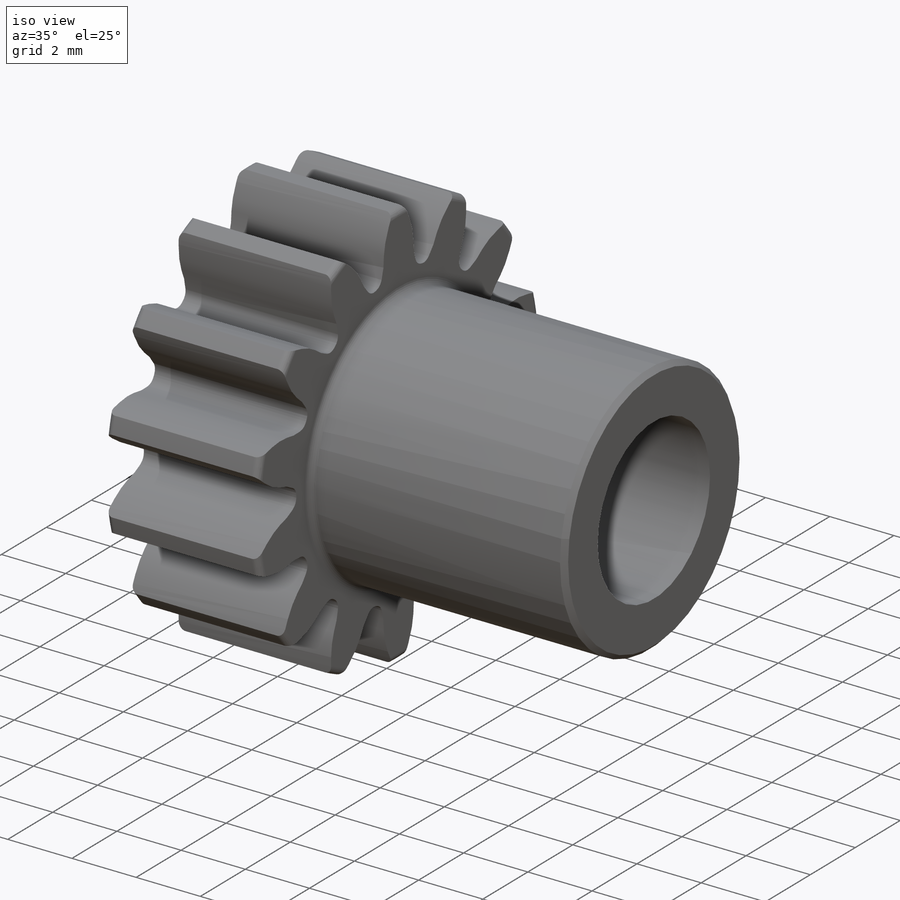
[diagram: iso view]
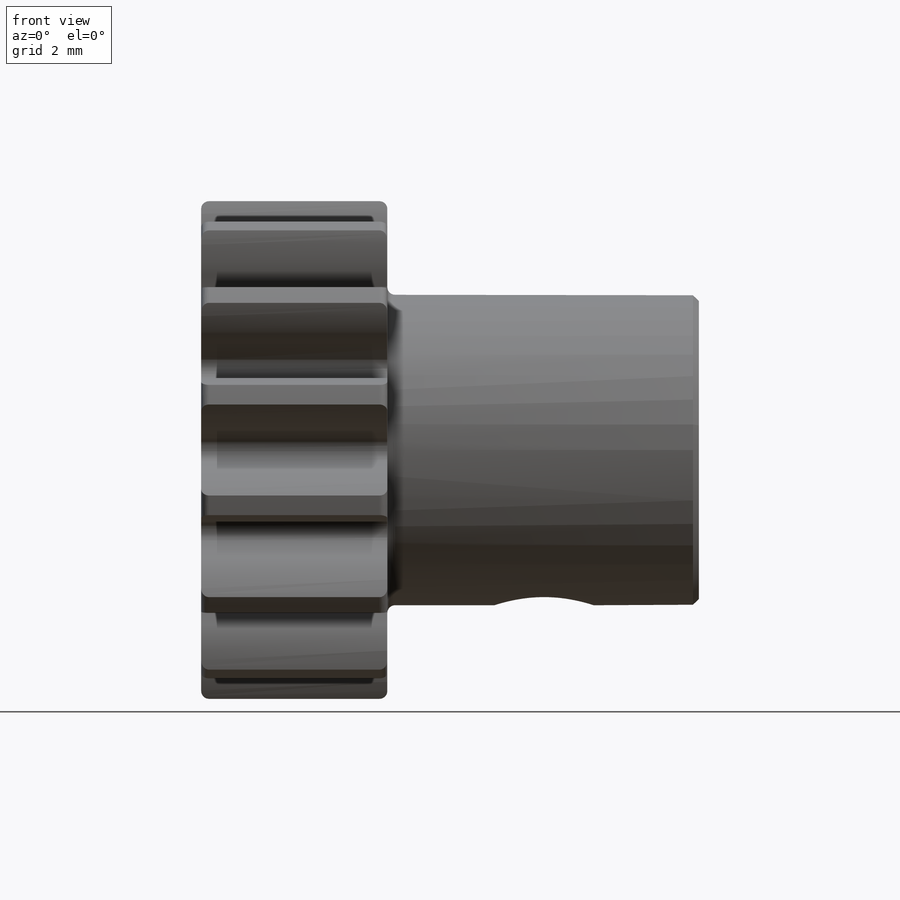
[diagram: front view]
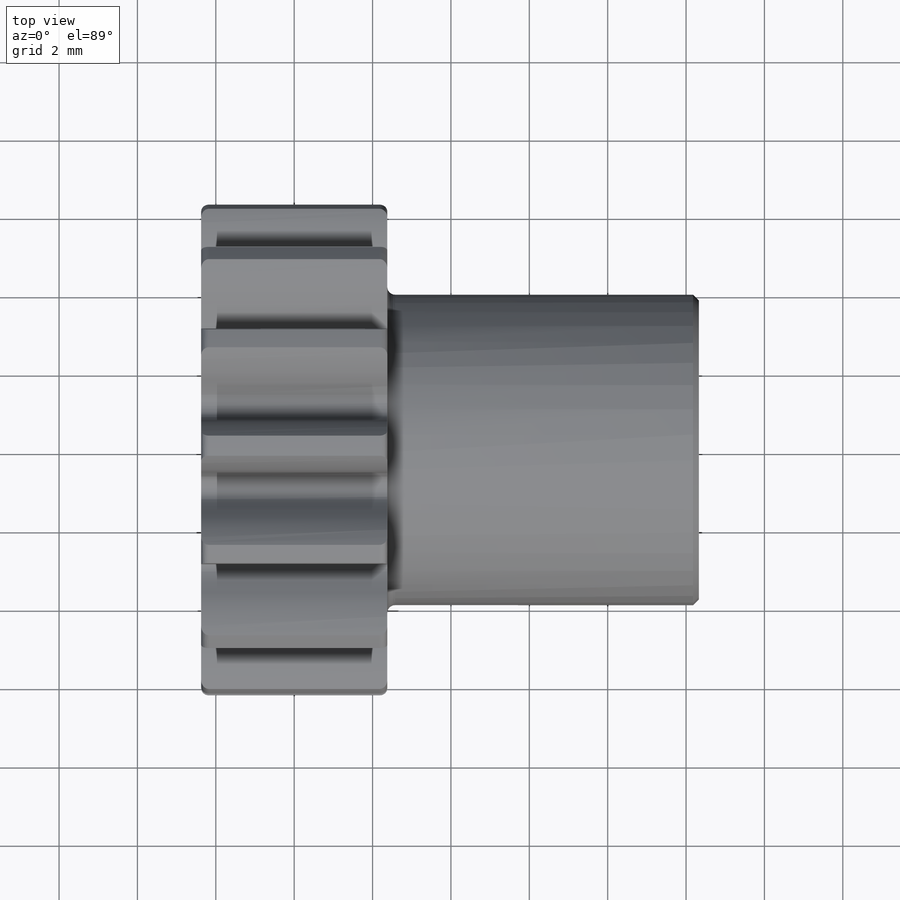
[diagram: top view]
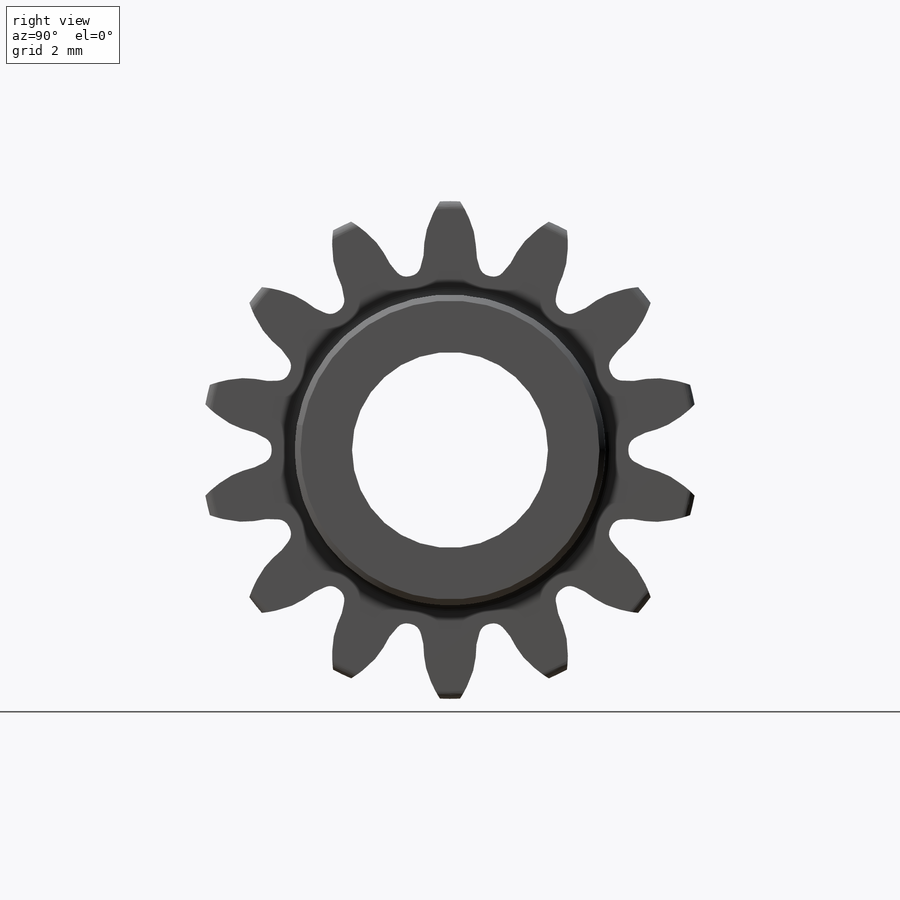
[diagram: right view]
SOLIDWORKS PART (.sldprt)
format: sldprt  version: not decoded by parser v0  size: 869,376 bytes
history: native  units: mm
features: sketch x20, cut_extrude x16, revolve x2, fillet x2, material x1, hole x1, chamfer x1 (+11 scaffold rows collapsed)
feature tree (54):
  scaffold x11  (default folders/planes/origin — collapsed)
  material  "Material <not specified>"
  sketch  "Sketch1"
  revolve  "Revolve1"  Angle=360deg
  sketch  "Sketch2"
  cut_extrude  "Cut-Extrude1"  Depth=4.7498mm
  sketch  "Sketch3"
  cut_extrude  "Cut-Extrude2"  Depth=4.7498mm
  sketch  "Sketch4"
  cut_extrude  "Cut-Extrude3"  Depth=4.7498mm
  sketch  "Sketch5"
  cut_extrude  "Cut-Extrude4"  Depth=4.7498mm
  sketch  "Sketch6"
  cut_extrude  "Cut-Extrude5"  Depth=4.7498mm
  sketch  "Sketch7"
  cut_extrude  "Cut-Extrude6"  Depth=4.7498mm
  sketch  "Sketch8"
  cut_extrude  "Cut-Extrude7"  Depth=4.7498mm
  sketch  "Sketch9"
  cut_extrude  "Cut-Extrude8"  Depth=4.7498mm
  sketch  "Sketch10"
  cut_extrude  "Cut-Extrude9"  Depth=4.7498mm
  sketch  "Sketch11"
  cut_extrude  "Cut-Extrude10"  Depth=4.7498mm
  sketch  "Sketch12"
  cut_extrude  "Cut-Extrude11"  Depth=4.7498mm
  sketch  "Sketch13"
  cut_extrude  "Cut-Extrude12"  Depth=4.7498mm
  sketch  "Sketch14"
  cut_extrude  "Cut-Extrude13"  Depth=4.7498mm
  sketch  "Sketch15"
  cut_extrude  "Cut-Extrude14"  Depth=4.7498mm
  sketch  "Sketch16"
  revolve  "Revolve2"  Angle=360deg
  hole  "M3.5 Clearance Hole1"  Diameter=3.9624mm Depth=12.7mm
  sketch  "Sketch18"
  sketch  "Sketch17"  dims[hole-wizard template sketch: 59 standard entries collapsed; hole parameters kept: c18.Thru Hole Dia.=3.9624mm c18.Thru Hole Depth=12.7mm]
  chamfer  "Chamfer1"  Distance=0.14859mm Angle=45deg
  fillet  "Fillet1"  Radius=0.198438mm
  fillet  "Fillet2"  Radius=0.309563mm
  sketch  "Sketch19"  dims[D1=5.0mm]
  cut_extrude  "Shaft widening"  [1 undecoded]
  sketch  "Sketch20"  dims[D1=2.54mm]
  cut_extrude  "Set screw hole"  [1 undecoded]
decode coverage: 23 of 42 modeling features carry decoded parameters
note: ~ marks probable driven/reference dimensions
note: 2 parameter values undecoded
note: suppression state not decoded; provenance and decode notes live in map.json
